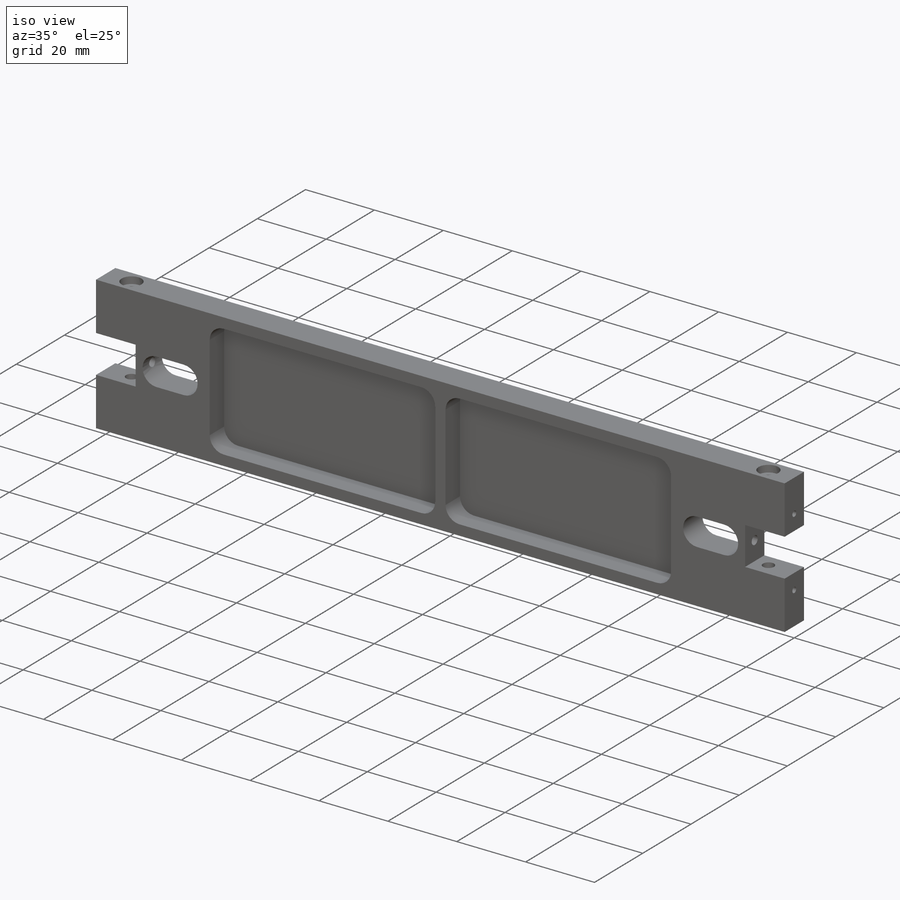
[diagram: iso view]
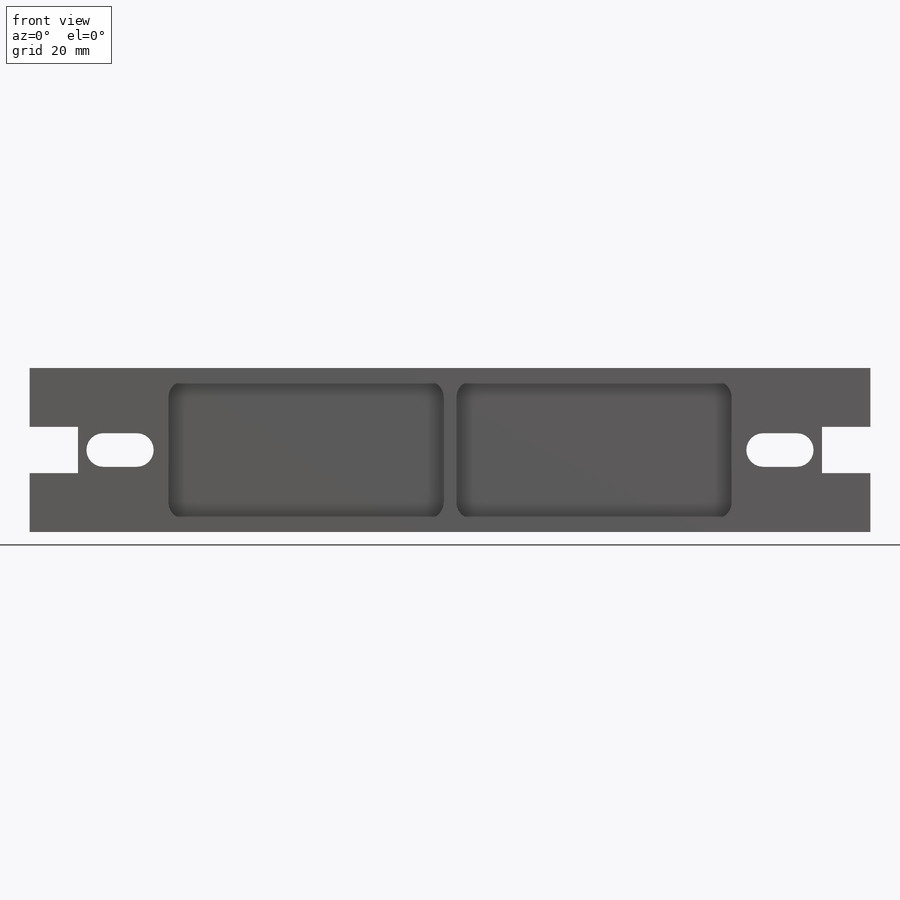
[diagram: front view]
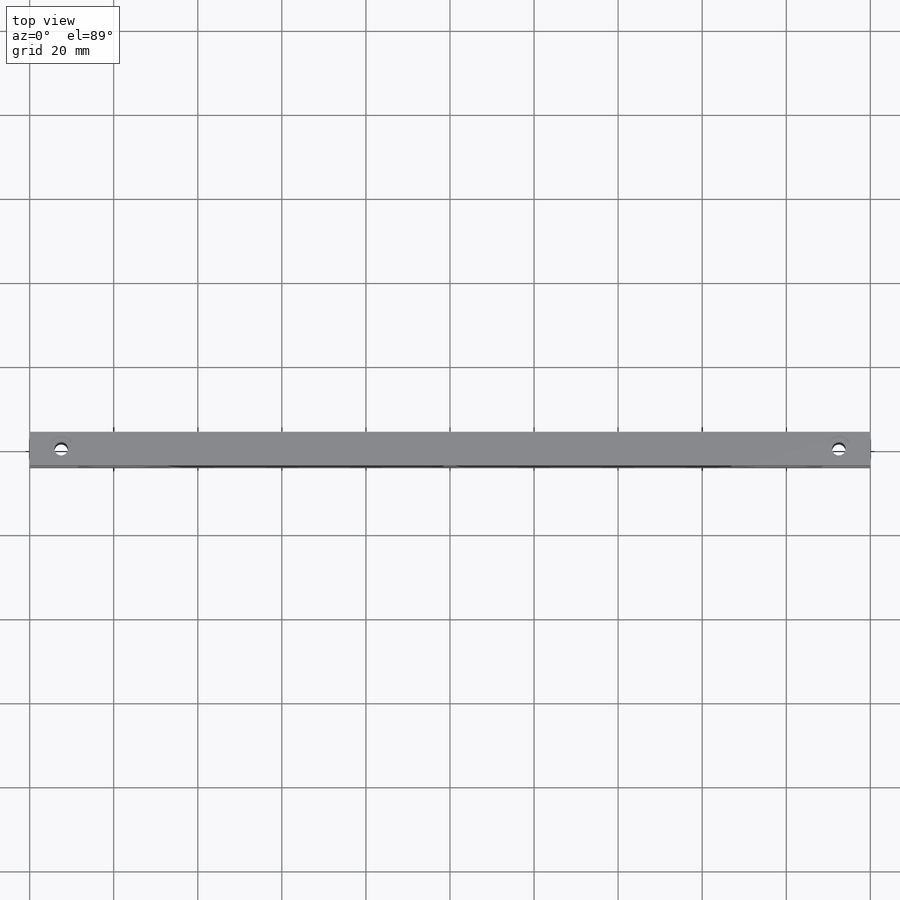
[diagram: top view]
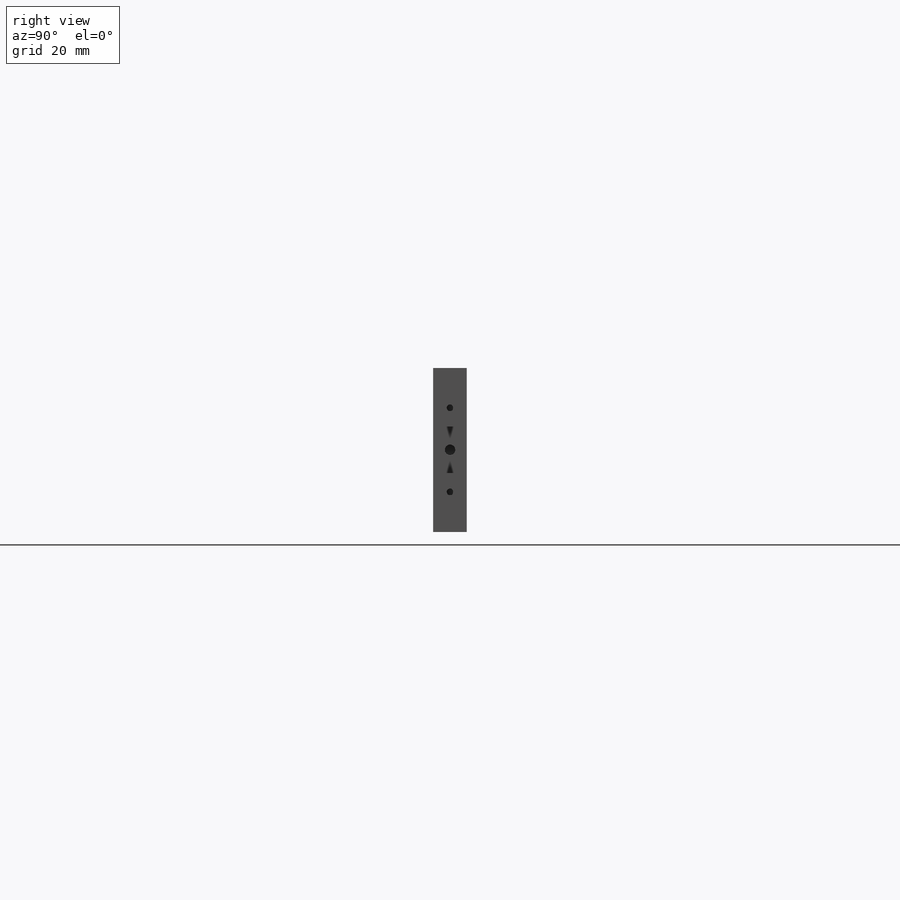
[diagram: right view]
SOLIDWORKS PART (.sldprt)
format: sldprt  version: not decoded by parser v0  size: 478,720 bytes
history: native  units: mm
features: sketch x10, plane x3, hole x3, thread x3, extrude x2, mirror x2, cut_extrude x2, material x1, fillet x1 (+9 scaffold rows collapsed)
feature tree (36):
  scaffold x9  (default folders/planes/origin — collapsed)
  material  "POM Acetalkopolymer"
  plane  "Ebene vorne"
  plane  "Ebene oben"
  plane  "Ebene rechts"
  sketch  "Skizze2"  dims[c1.D6=~4.688632mm c1.D1=177.0mm c1.D2=11.0mm c1.D3=17.0mm c1.D4=11.5mm c2.D3=207.0mm c2.D1=177.0mm c2.D2=11.0mm c3.D3=3.0mm c3.D5=39.0mm c3.D6=8.0mm c3.D7=15.0mm c3.D8=8.5mm c3.D9=11.8mm c3.D10=~7.746967mm c4.D10=45.0deg c4.D3=200.0mm]
  extrude  "Aufsatz-Linear austragen1"  Depth=8mm
  hole  "Stirnsenkung für  M3 Zylinderschraube mit Schlitz/Kreuzschlitz1"  Diameter=3.2mm Depth=19.5mm
  sketch  "Skizze7"  dims[D1=7.5mm]
  sketch  "Skizze8"  dims[hole-wizard template sketch: 42 standard entries collapsed; hole parameters kept: c12.Bohrungstiefe=19.5mm c12.Senkdurchmesser2=5.8mm c12.Senktiefe2=2.0mm]
  mirror  "Spiegeln2"
  hole  "M3 Gewindebohrung1"  Diameter=2.5mm Depth=8.5mm
  sketch  "Skizze10"
  sketch  "Skizze9"  dims[hole-wizard template sketch: 47 standard entries collapsed; hole parameters kept: c15.Bohrungstiefe=8.5mm c15.D3=~14.816244mm c15.Spitzenwinkel=118.0deg]
  thread  "Bohrungsgewinde4"  Diameter=6mm  [1 undecoded]
  hole  "M2 Gewindebohrung1"  Diameter=1.6mm Depth=6mm
  sketch  "Skizze12"  dims[D1=20.0mm]
  sketch  "Skizze11"  dims[hole-wizard template sketch: 50 standard entries collapsed; hole parameters above]
  thread  "Bohrungsgewinde2"  Diameter=4mm  [1 undecoded]
  thread  "Bohrungsgewinde3"  Diameter=4mm  [1 undecoded]
  mirror  "Spiegeln3"
  sketch  "Skizze3"  dims[c1.D4=~3.434162mm c1.D1=14.0mm c1.D2=20.0mm c1.D3=40.0mm c2.D4=8.0mm c2.D5=8.0mm c2.D2=2.0mm c2.D1=3.0mm c3.D2=3.0mm c3.D3=25.0mm c3.D6=4.0mm c4.D3=14.0mm c4.D7=67.0mm]
  cut_extrude  "Schnitt-Linear austragen1"  Depth=2mm
  cut_extrude  "Schnitt-Linear austragen2"  [1 undecoded]
  sketch  "Skizze3<3>"
  fillet  "Verrundung1"  Radius=4mm
  sketch  "Skizze13"
  extrude  "Aufsatz-Linear austragen2"  [1 undecoded]
decode coverage: 16 of 23 modeling features carry decoded parameters
note: ~ marks probable driven/reference dimensions
note: 5 parameter values undecoded
note: suppression state not decoded; provenance and decode notes live in map.json
